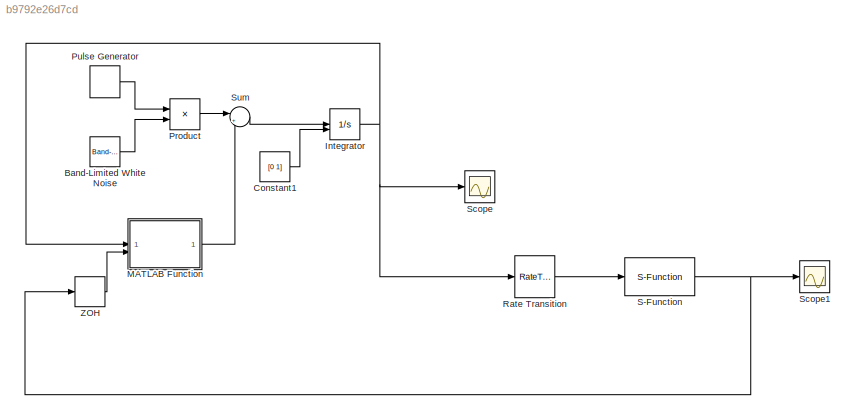
MODEL slx_b9792e26d7cd
KIND model
CONFIG AbsTol = auto
CONFIG EnableMultiTasking = on
CONFIG FixedStep = auto
CONFIG MaxStep = 0.01
CONFIG MinStep = auto
CONFIG RelTol = 1e-3
CONFIG SampleTimeConstraint = Unconstrained
CONFIG SolverName = ode45
CONFIG StartTime = 0.0
CONFIG StopTime = 20.0
BLOCK [Reference] Band-Limited White Noise  REF=simulink/Sources/Band-Limited
White Noise
  SourceBlock = simulink/Sources/Band-Limited\nWhite Noise
  SourceType = Band-Limited White Noise.
BLOCK [Constant] Constant1
  Value = [0 1]
BLOCK [Integrator] Integrator
  InitialCondition = [1 0]'
  InitialConditionSource = external
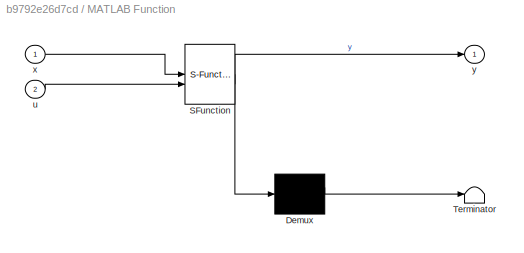
BLOCK [SubSystem] MATLAB Function
  ErrorFcn = Stateflow.Translate.translate
  PermitHierarchicalResolution = ExplicitOnly
  SFBlockType = MATLAB Function
  TreatAsAtomicUnit = on
BLOCK [Demux] MATLAB Function/ Demux 
  Outputs = 1
BLOCK [S-Function] MATLAB Function/ SFunction 
  EnableBusSupport = off
  FunctionName = sf_sfun
  PortCounts = [2 2]
  SFcnIsStateOwnerBlock = off
  SFunctionDeploymentMode = off
  Tag = Stateflow S-Function 2
BLOCK [Terminator] MATLAB Function/ Terminator 
BLOCK [Inport] MATLAB Function/u
  Port = 2
BLOCK [Inport] MATLAB Function/x
BLOCK [Outport] MATLAB Function/y
  VectorParamsAs1DForOutWhenUnconnected = off
BLOCK [Product] Product
BLOCK [DiscretePulseGenerator] Pulse Generator
  Period = 10
  PhaseDelay = 10
  PulseType = Time based
  PulseWidth = 5
BLOCK [RateTransition] Rate Transition
  OutPortSampleTime = 0.5
BLOCK [S-Function] S-Function
  EnableBusSupport = off
  FunctionName = casadi_fun
  Parameters = 'f.casadi', 'f'
  SFcnIsStateOwnerBlock = off
  SFunctionDeploymentMode = off
BLOCK [Scope] Scope
  Floating = off
  NumInputPorts = 1
  ScopeSpecificationString = Simulink.scopes.TimeScopeBlockCfg('CurrentConfiguration', extmgr.ConfigurationSet(extmgr.Configuration('Core','General UI',true),extmgr.Configuration('Core','Source UI',true),extmgr.Configuration('Sources','WiredSimulink',true,'DataLoggingLimitDataPoints',true,'DataLoggingSaveFormat','Array','DataLoggingDecimation','1','DataLoggingDecimateData',true),extmgr.Configuration('Visuals','Time Domain',tr...<+1651ch>
BLOCK [Scope] Scope1
  Floating = off
  NumInputPorts = 1
  ScopeSpecificationString = Simulink.scopes.TimeScopeBlockCfg('CurrentConfiguration', extmgr.ConfigurationSet(extmgr.Configuration('Core','General UI',true),extmgr.Configuration('Core','Source UI',true),extmgr.Configuration('Sources','WiredSimulink',true,'DataLoggingVariableName','ScopeData1','DataLoggingLimitDataPoints',true,'DataLoggingSaveFormat','Array','DataLoggingDecimation','1','DataLoggingDecimateData',true),extmgr.C...<+1669ch>
BLOCK [Sum] Sum
  Inputs = |++
BLOCK [ZeroOrderHold] ZOH
  SampleTime = 0.5
LINE Band-Limited White Noise:1 -> Product:2
LINE Constant1:1 -> Integrator:2
NET Integrator:1 -> MATLAB Function:1, Rate Transition:1, Scope:1
LINE MATLAB Function:1 -> Sum:2
LINE Product:1 -> Sum:1
LINE Pulse Generator:1 -> Product:1
LINE Rate Transition:1 -> S-Function:1
NET S-Function:1 -> Scope1:1, ZOH:1
LINE Sum:1 -> Integrator:1
LINE ZOH:1 -> MATLAB Function:2
note: NET lines group one-source signal fan-out (src -> all destinations, sorted); 1:1 wires keep LINE
CHART MATLAB Function states=1 transitions=1
  STATE_LABEL 'eML_blk_kernel()'
  STATE_LABEL 'SCRIPT:\nfunction y = rhs(x,u)\n%#codegen\n\ny = [(1-x(2)^2)*x(1) - x(2) + u; x(1)];\n\n\nend'
CHART  states=0 transitions=0
